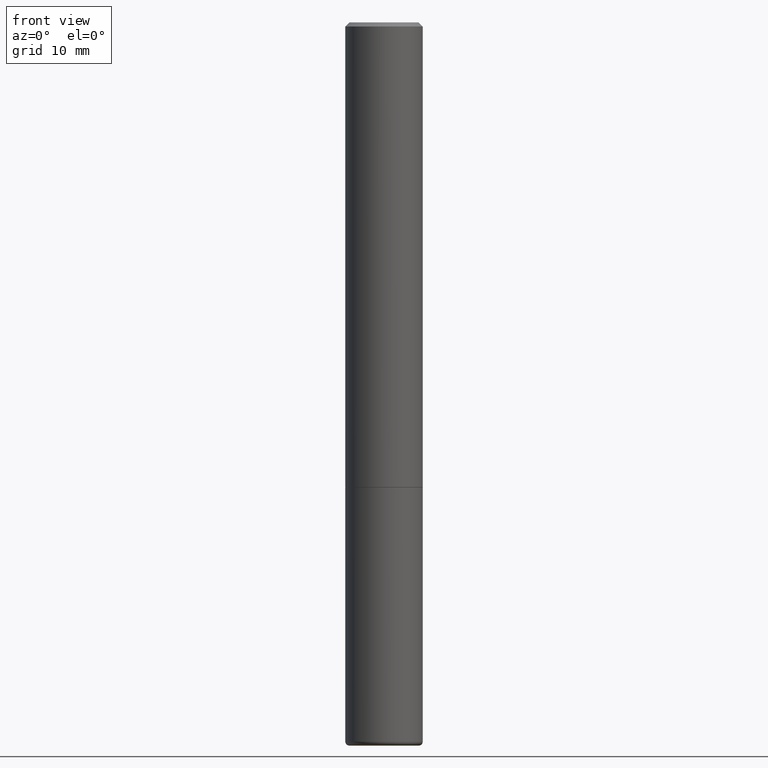
[diagram: clean part render]
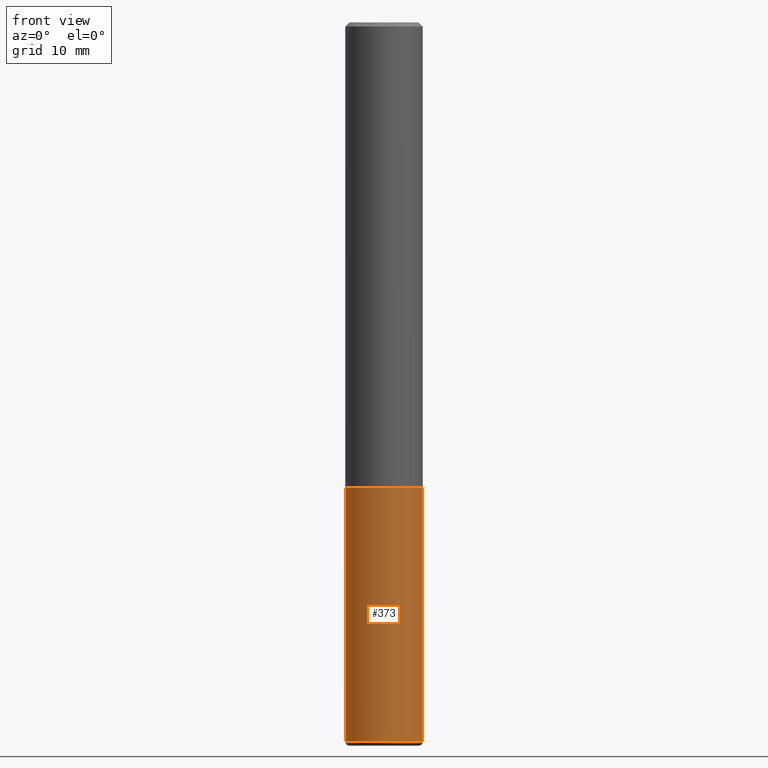
[diagram: same view with one face highlighted and labeled with its STEP entity id]
A machine part, front view. The second image highlights one B-rep face of the part: STEP entity #373.
In plain terms, the highlighted cylindrical surface (partial cylindrical patch) has radius 4.7625 mm, axis along (-0, 0, 1).
Its self-contained STEP definition (entity closure, byte-faithful):
#1 = DIRECTION ( 'NONE',  ( -2.445468806185136877E-29, 3.491481338843145188E-15, 1.000000000000000000 ) ) ;
#10 = DIRECTION ( 'NONE',  ( -2.445468806185136597E-29, 3.491481338843145583E-15, 1.000000000000000000 ) ) ;
#20 = DIRECTION ( 'NONE',  ( -2.445468806185136597E-29, 3.491481338843145583E-15, 1.000000000000000000 ) ) ;
#42 = CARTESIAN_POINT ( 'NONE',  ( -0.1875000000000000278, -8.670827735684531822E-15, -2.249999999999999556 ) ) ;
#43 = CARTESIAN_POINT ( 'NONE',  ( 0.1874999999999999722, -1.309305502066174811E-15, 9.142831454617378210E-30 ) ) ;
#44 = CIRCLE ( 'NONE', #323, 0.1874999999999999722 ) ;
#56 = DIRECTION ( 'NONE',  ( 1.000000000000000000, -6.982962677686263555E-15, 0.000000000000000000 ) ) ;
#64 = CIRCLE ( 'NONE', #343, 0.1875000000000000278 ) ;
#98 = DIRECTION ( 'NONE',  ( 1.000000000000000000, -6.982962677686266711E-15, 4.876176775795935793E-29 ) ) ;
#135 = CARTESIAN_POINT ( 'NONE',  ( 5.502304813916556222E-29, -7.855833012397076871E-15, -2.249999999999999556 ) ) ;
#169 = VECTOR ( 'NONE', #1, 39.37007874015748143 ) ;
#171 = ORIENTED_EDGE ( 'NONE', *, *, #487, .F. ) ;
#173 = CARTESIAN_POINT ( 'NONE',  ( -0.1874999999999999722, 1.332267629550187651E-15, -9.223003294227946589E-30 ) ) ;
#174 = VERTEX_POINT ( 'NONE', #458 ) ;
#227 = EDGE_CURVE ( 'NONE', #281, #174, #348, .T. ) ;
#248 = DIRECTION ( 'NONE',  ( -2.445468806185136597E-29, 3.491481338843145583E-15, 1.000000000000000000 ) ) ;
#249 = EDGE_LOOP ( 'NONE', ( #171, #469, #397, #298 ) ) ;
#251 = LINE ( 'NONE', #173, #351 ) ;
#253 = AXIS2_PLACEMENT_3D ( 'NONE', #396, #20, #98 ) ;
#276 = VERTEX_POINT ( 'NONE', #42 ) ;
#281 = VERTEX_POINT ( 'NONE', #318 ) ;
#294 = VERTEX_POINT ( 'NONE', #377 ) ;
#298 = ORIENTED_EDGE ( 'NONE', *, *, #466, .F. ) ;
#318 = CARTESIAN_POINT ( 'NONE',  ( 0.1874999999999999722, -1.345966322013853748E-14, -3.480000761538716514 ) ) ;
#323 = AXIS2_PLACEMENT_3D ( 'NONE', #392, #10, #56 ) ;
#343 = AXIS2_PLACEMENT_3D ( 'NONE', #135, #248, #388 ) ;
#348 = LINE ( 'NONE', #43, #169 ) ;
#351 = VECTOR ( 'NONE', #430, 39.37007874015748143 ) ;
#365 = CYLINDRICAL_SURFACE ( 'NONE', #253, 0.1874999999999999722 ) ;
#373 = ADVANCED_FACE ( 'NONE', ( #464 ), #365, .T. ) ;
#377 = CARTESIAN_POINT ( 'NONE',  ( -0.1874999999999999722, -8.670827735684531822E-15, -3.480000761538716514 ) ) ;
#388 = DIRECTION ( 'NONE',  ( 1.000000000000000000, -6.982962677686261189E-15, 0.000000000000000000 ) ) ;
#392 = CARTESIAN_POINT ( 'NONE',  ( 8.510233307843451119E-29, -1.215035771807236405E-14, -3.480000761538716514 ) ) ;
#396 = CARTESIAN_POINT ( 'NONE',  ( 0.000000000000000000, 0.000000000000000000, 0.000000000000000000 ) ) ;
#397 = ORIENTED_EDGE ( 'NONE', *, *, #227, .T. ) ;
#430 = DIRECTION ( 'NONE',  ( -2.445468806185136877E-29, 3.491481338843145188E-15, 1.000000000000000000 ) ) ;
#450 = EDGE_CURVE ( 'NONE', #294, #281, #44, .T. ) ;
#458 = CARTESIAN_POINT ( 'NONE',  ( 0.1875000000000000278, -9.165138514463251879E-15, -2.249999999999999556 ) ) ;
#464 = FACE_OUTER_BOUND ( 'NONE', #249, .T. ) ;
#466 = EDGE_CURVE ( 'NONE', #276, #174, #64, .T. ) ;
#469 = ORIENTED_EDGE ( 'NONE', *, *, #450, .T. ) ;
#487 = EDGE_CURVE ( 'NONE', #294, #276, #251, .T. ) ;